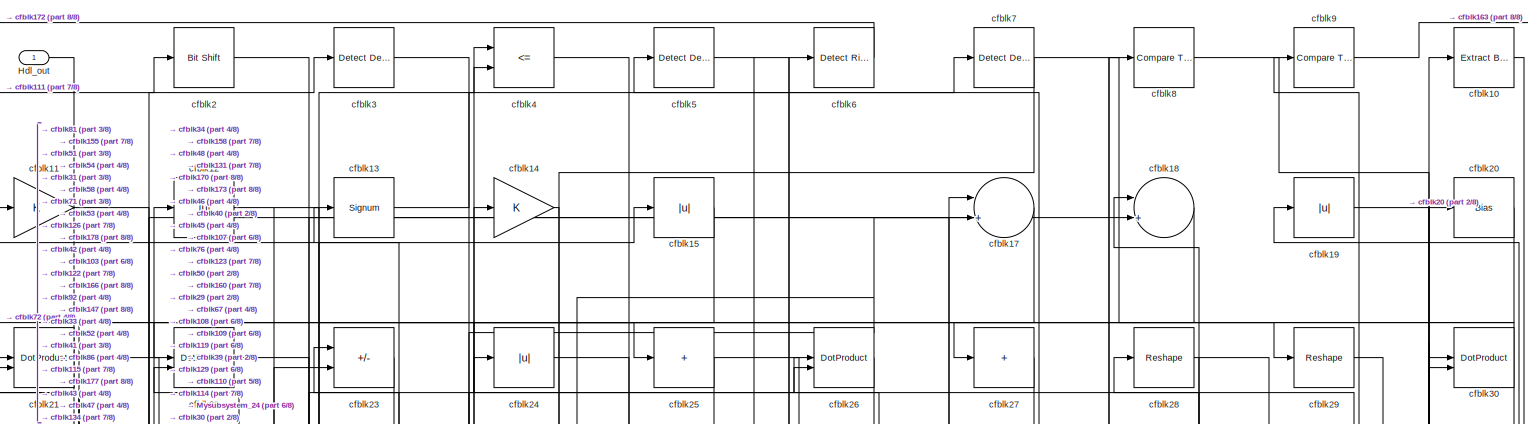
[diagram: root canvas - part 1/8, full width, top band]
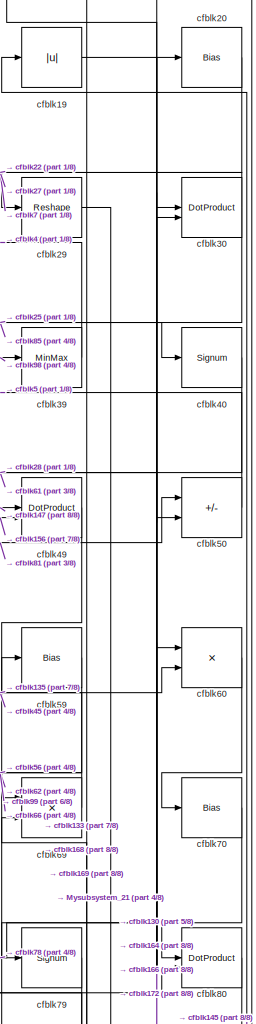
[diagram: root canvas - part 2/8, top right region]
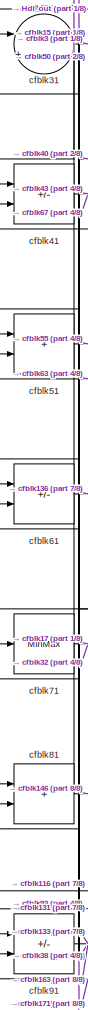
[diagram: root canvas - part 3/8, middle left region]
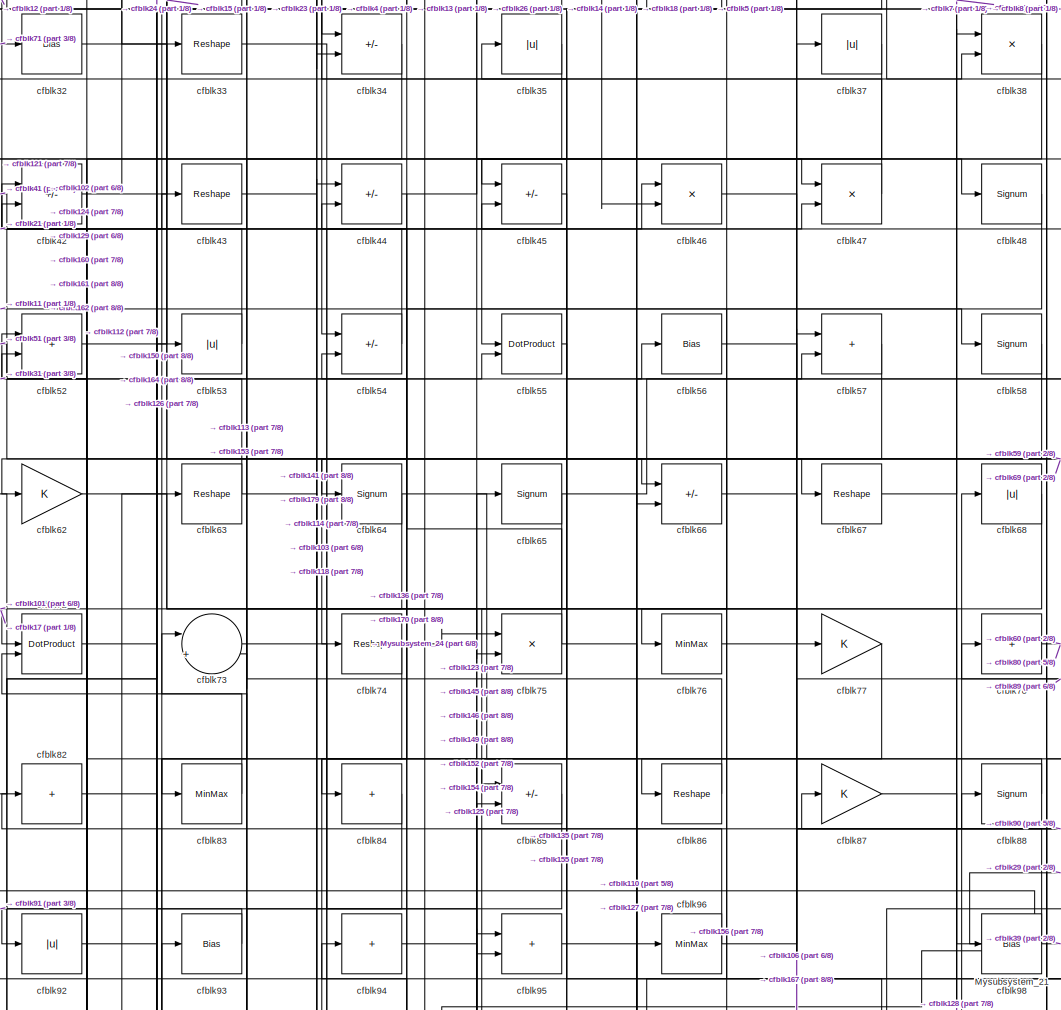
[diagram: root canvas - part 4/8, central region]
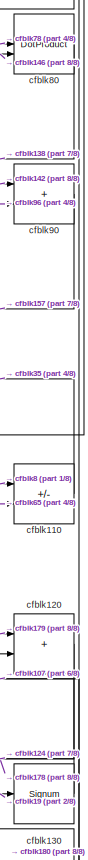
[diagram: root canvas - part 5/8, middle right region]
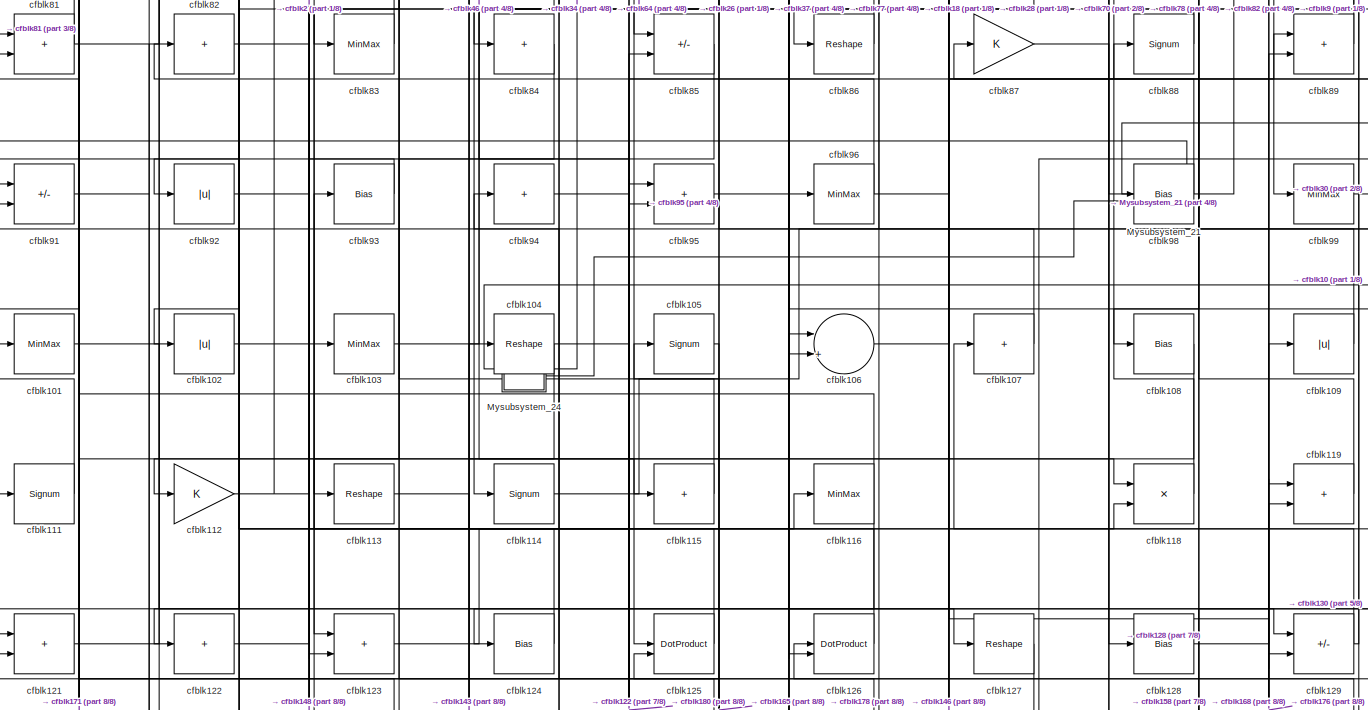
[diagram: root canvas - part 6/8, full width, middle band]
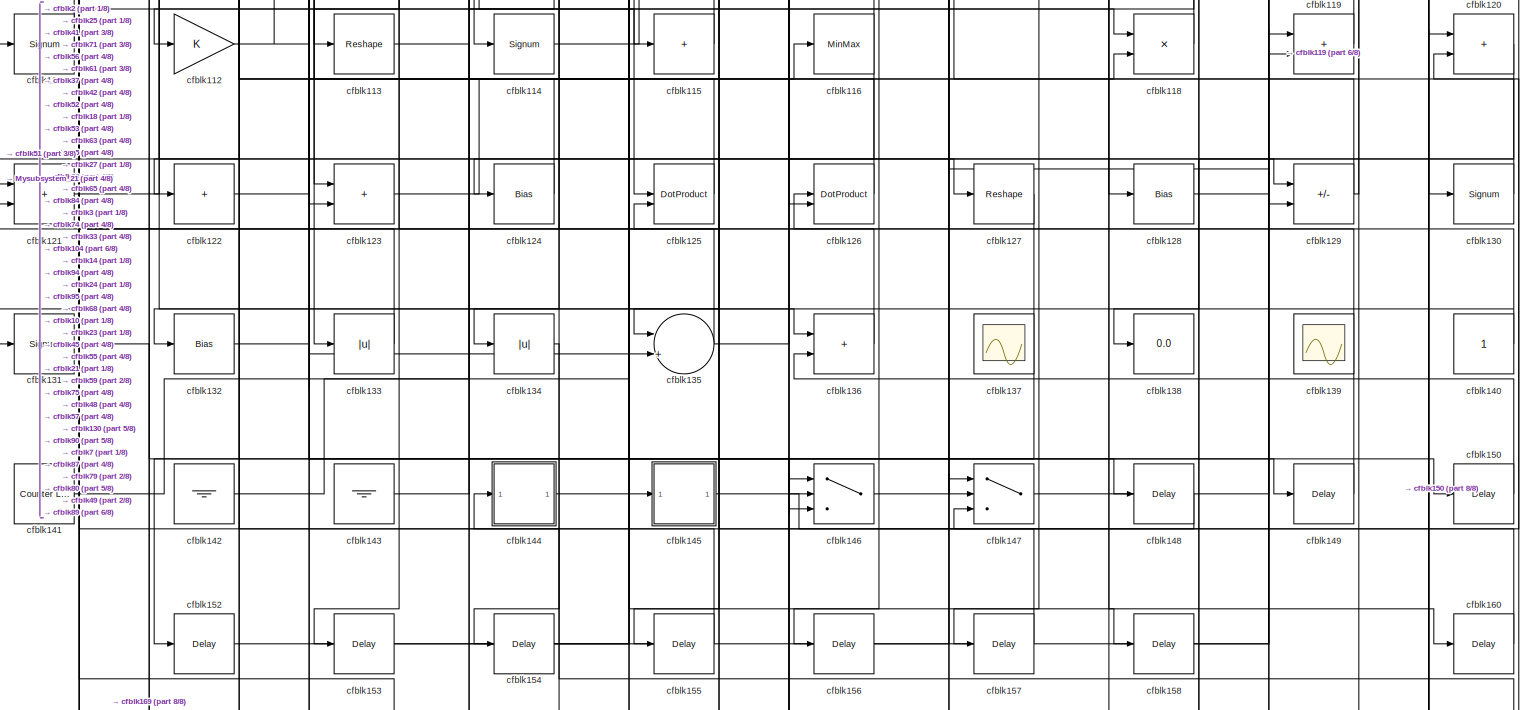
[diagram: root canvas - part 7/8, full width, bottom band]
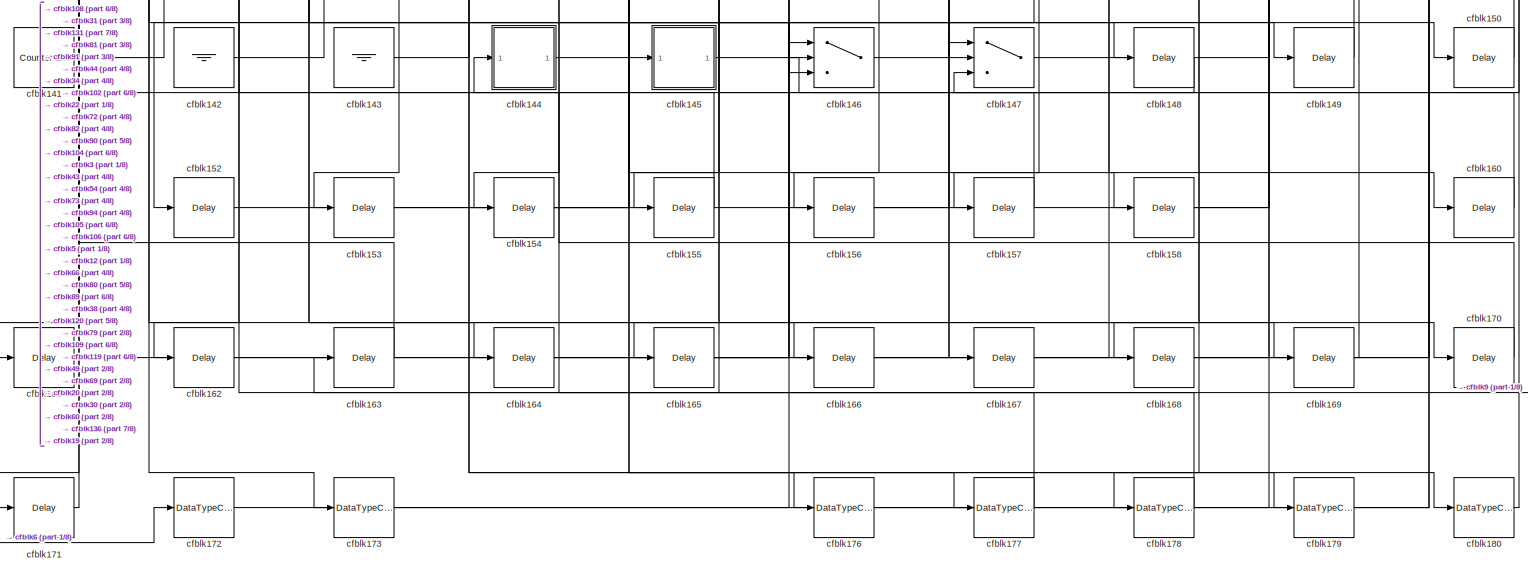
[diagram: root canvas - part 8/8, full width, bottom band]
MODEL slx_ea24ddf45c5c
KIND model
CONFIG AbsTol = auto
CONFIG EnableMultiTasking = off
CONFIG FixedStep = auto
CONFIG MaxStep = auto
CONFIG MinStep = auto
CONFIG RelTol = 1e-3
CONFIG SampleTimeConstraint = Unconstrained
CONFIG SolverName = VariableStepAuto
CONFIG StartTime = 0.0
CONFIG StopTime = 10.0
BLOCK [Outport] Hdl_out
  OutDataTypeStr = uint8
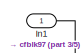
[diagram: Mysubsystem_21 - part 1/5, top right region]
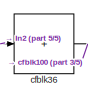
[diagram: Mysubsystem_21 - part 2/5, top center region]
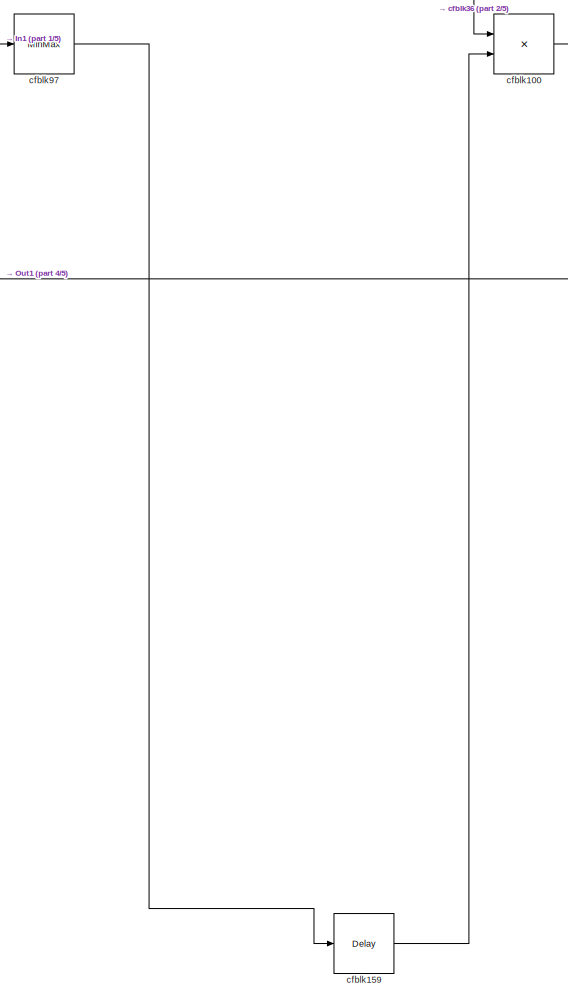
[diagram: Mysubsystem_21 - part 3/5, middle right region]
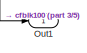
[diagram: Mysubsystem_21 - part 4/5, middle left region]
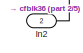
[diagram: Mysubsystem_21 - part 5/5, bottom center region]
BLOCK [SubSystem] Mysubsystem_21
  RTWFcnName = Mysubsystem_21
  RTWFcnNameOpts = User specified
  RTWFileNameOpts = Use function name
  RTWSystemCode = Reusable function
  TreatAsAtomicUnit = on
BLOCK [Inport] Mysubsystem_21/In1
BLOCK [Inport] Mysubsystem_21/In2
  Port = 2
BLOCK [Outport] Mysubsystem_21/Out1
BLOCK [Product] Mysubsystem_21/cfblk100
  Inputs = */
  RndMeth = Zero
  SaturateOnIntegerOverflow = on
BLOCK [Delay] Mysubsystem_21/cfblk159
  InputPortMap = u0
  SampleTime = 1
BLOCK [Sum] Mysubsystem_21/cfblk36
  IconShape = rectangular
  Inputs = +
BLOCK [MinMax] Mysubsystem_21/cfblk97
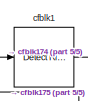
[diagram: Mysubsystem_24 - part 1/5, top left region]
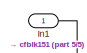
[diagram: Mysubsystem_24 - part 2/5, top right region]
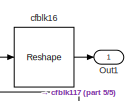
[diagram: Mysubsystem_24 - part 3/5, top center region]
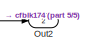
[diagram: Mysubsystem_24 - part 4/5, middle right region]
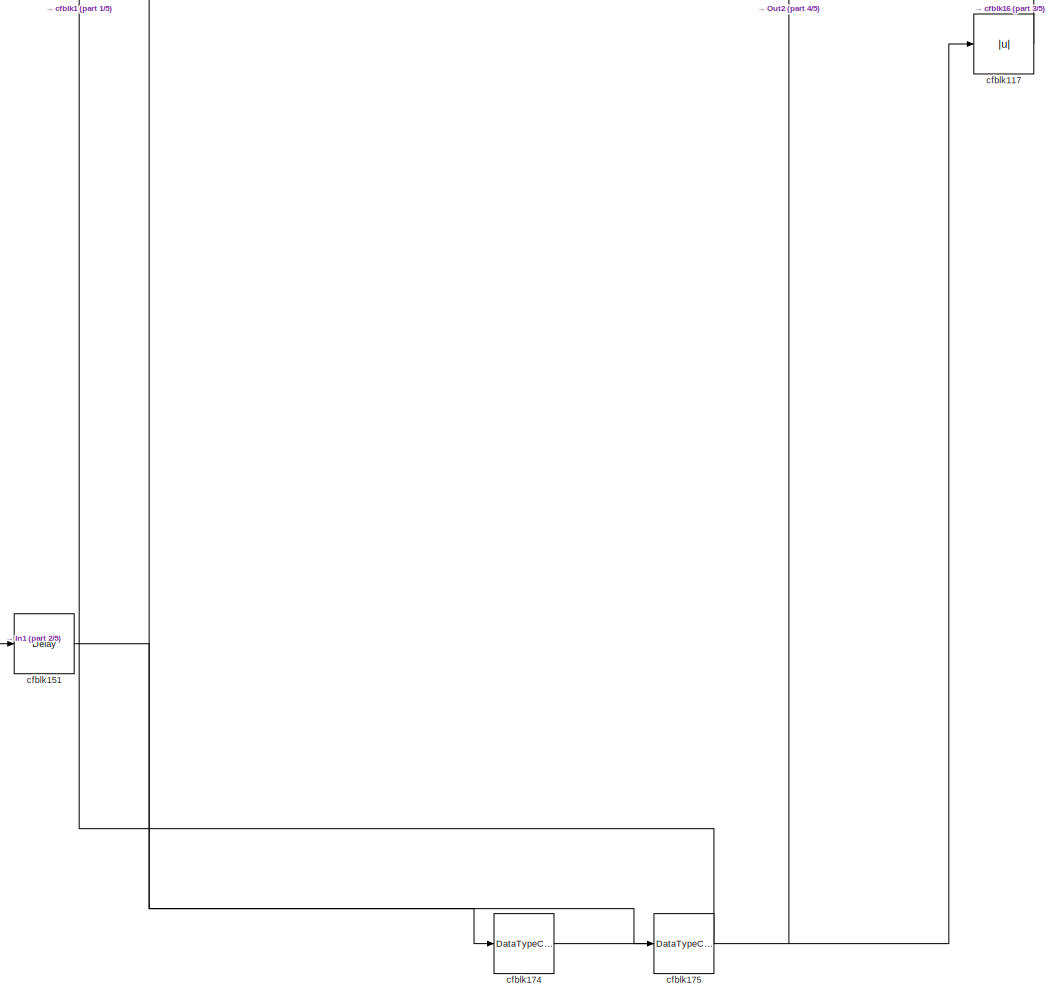
[diagram: Mysubsystem_24 - part 5/5, bottom center region]
BLOCK [SubSystem] Mysubsystem_24
  RTWFcnName = Mysubsystem_24
  RTWFcnNameOpts = User specified
  RTWFileNameOpts = Use function name
  RTWSystemCode = Reusable function
  TreatAsAtomicUnit = on
BLOCK [Inport] Mysubsystem_24/In1
BLOCK [Outport] Mysubsystem_24/Out1
BLOCK [Outport] Mysubsystem_24/Out2
  Port = 2
BLOCK [Reference] Mysubsystem_24/cfblk1  REF=hdlsllib/Logic and Bit
Operations/Detect Rise
Nonnegative
  SourceBlock = hdlsllib/Logic and Bit\nOperations/Detect Rise\nNonnegative
  SourceType = Detect Rise Nonnegative
BLOCK [Abs] Mysubsystem_24/cfblk117
  SaturateOnIntegerOverflow = off
BLOCK [Delay] Mysubsystem_24/cfblk151
  InputPortMap = u0
  SampleTime = 1
BLOCK [Reshape] Mysubsystem_24/cfblk16
BLOCK [DataTypeConversion] Mysubsystem_24/cfblk174
  RndMeth = Floor
  SaturateOnIntegerOverflow = off
BLOCK [DataTypeConversion] Mysubsystem_24/cfblk175
  OutDataTypeStr = uint8
  RndMeth = Floor
  SaturateOnIntegerOverflow = off
BLOCK [Reference] cfblk10  REF=simulink/Logic and Bit
Operations/Extract Bits
  LibrarySourceBlock = hdlsllib/Logic and Bit\nOperations/Extract Bits
  SourceBlock = simulink/Logic and Bit\nOperations/Extract Bits
  SourceType = Extract Bits
BLOCK [MinMax] cfblk101
  OutDataTypeStr = uint8
BLOCK [Abs] cfblk102
  OutDataTypeStr = uint8
  SaturateOnIntegerOverflow = off
BLOCK [MinMax] cfblk103
  OutDataTypeStr = uint8
BLOCK [Reshape] cfblk104
BLOCK [Signum] cfblk105
BLOCK [Sum] cfblk106
  Inputs = |++
  OutDataTypeStr = uint8
BLOCK [Sum] cfblk107
  IconShape = rectangular
  Inputs = +
  OutDataTypeStr = uint8
BLOCK [Bias] cfblk108
  Bias = 0.0
  SaturateOnIntegerOverflow = off
BLOCK [Abs] cfblk109
  OutDataTypeStr = uint8
  SaturateOnIntegerOverflow = off
BLOCK [Gain] cfblk11
  OutDataTypeStr = uint8
BLOCK [Sum] cfblk110
  IconShape = rectangular
  Inputs = +-
  OutDataTypeStr = uint8
BLOCK [Signum] cfblk111
BLOCK [Gain] cfblk112
  OutDataTypeStr = uint8
BLOCK [Reshape] cfblk113
BLOCK [Signum] cfblk114
BLOCK [Sum] cfblk115
  IconShape = rectangular
  Inputs = +
  OutDataTypeStr = uint8
BLOCK [MinMax] cfblk116
  OutDataTypeStr = uint8
BLOCK [Product] cfblk118
  Inputs = */
  OutDataTypeStr = uint8
  RndMeth = Zero
  SaturateOnIntegerOverflow = on
BLOCK [Sum] cfblk119
  IconShape = rectangular
  OutDataTypeStr = uint8
BLOCK [Abs] cfblk12
  OutDataTypeStr = uint8
  SaturateOnIntegerOverflow = off
BLOCK [Sum] cfblk120
  IconShape = rectangular
  OutDataTypeStr = uint8
BLOCK [Sum] cfblk121
  IconShape = rectangular
  OutDataTypeStr = uint8
BLOCK [Sum] cfblk122
  IconShape = rectangular
  Inputs = +
  OutDataTypeStr = uint8
BLOCK [Sum] cfblk123
  IconShape = rectangular
  OutDataTypeStr = uint8
BLOCK [Bias] cfblk124
  Bias = 0.0
  SaturateOnIntegerOverflow = off
BLOCK [DotProduct] cfblk125
  OutDataTypeStr = uint8
BLOCK [DotProduct] cfblk126
  OutDataTypeStr = uint8
BLOCK [Reshape] cfblk127
BLOCK [Bias] cfblk128
  Bias = 0.0
  SaturateOnIntegerOverflow = off
BLOCK [Sum] cfblk129
  IconShape = rectangular
  Inputs = +-
  OutDataTypeStr = uint8
BLOCK [Signum] cfblk13
BLOCK [Signum] cfblk130
BLOCK [Signum] cfblk131
BLOCK [Bias] cfblk132
  Bias = 0.0
  SaturateOnIntegerOverflow = off
BLOCK [Abs] cfblk133
  OutDataTypeStr = uint8
  SaturateOnIntegerOverflow = off
BLOCK [Abs] cfblk134
  OutDataTypeStr = uint8
  SaturateOnIntegerOverflow = off
BLOCK [Sum] cfblk135
  Inputs = |++
  OutDataTypeStr = uint8
BLOCK [Sum] cfblk136
  IconShape = rectangular
  OutDataTypeStr = uint8
BLOCK [Scope] cfblk137
  Floating = on
  NumInputPorts = 1
  ScopeSpecificationString = Simulink.scopes.TimeScopeBlockCfg('CurrentConfiguration', extmgr.ConfigurationSet(extmgr.Configuration('Core','General UI',true,'FigureColor',[0.156862745098039 0.156862745098039 0.156862745098039]),extmgr.Configuration('Core','Source UI',true),extmgr.Configuration('Sources','WiredSimulink',true,'DataLoggingVariableName','ScopeData1','DataLoggingSaveFormat','StructureWithTime','DataLoggingLimitDat...<+2713ch>
BLOCK [Display] cfblk138
  Decimation = 1
BLOCK [Scope] cfblk139
  Floating = on
  NumInputPorts = 1
  ScopeSpecificationString = Simulink.scopes.TimeScopeBlockCfg('CurrentConfiguration', extmgr.ConfigurationSet(extmgr.Configuration('Core','General UI',true,'FigureColor',[0.156862745098039 0.156862745098039 0.156862745098039]),extmgr.Configuration('Core','Source UI',true),extmgr.Configuration('Sources','WiredSimulink',true,'DataLoggingVariableName','ScopeData1','DataLoggingSaveFormat','StructureWithTime','DataLoggingLimitDat...<+2713ch>
BLOCK [Gain] cfblk14
  OutDataTypeStr = uint8
BLOCK [Constant] cfblk140
  OutDataTypeStr = uint8
  SampleTime = -1
BLOCK [Reference] cfblk141  REF=hdlsllib/Sources/Counter
Limited
  SourceBlock = hdlsllib/Sources/Counter\nLimited
  SourceType = Counter Limited
BLOCK [Ground] cfblk142
BLOCK [Ground] cfblk143
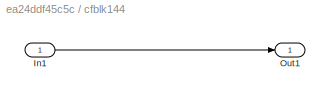
BLOCK [SubSystem] cfblk144
  LibrarySourceBlock = hdlsllib/Ports &\nSubsystems/Subsystem
BLOCK [Inport] cfblk144/In1
BLOCK [Outport] cfblk144/Out1
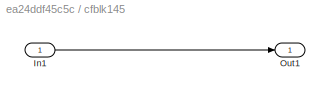
BLOCK [SubSystem] cfblk145
  LibrarySourceBlock = hdlsllib/Ports &\nSubsystems/Subsystem
BLOCK [Inport] cfblk145/In1
BLOCK [Outport] cfblk145/Out1
BLOCK [Switch] cfblk146
  InputSameDT = off
  OutDataTypeStr = uint8
  SaturateOnIntegerOverflow = off
BLOCK [Switch] cfblk147
  InputSameDT = off
  OutDataTypeStr = uint8
  SaturateOnIntegerOverflow = off
BLOCK [Delay] cfblk148
  InputPortMap = u0
  SampleTime = 1
BLOCK [Delay] cfblk149
  InputPortMap = u0
  SampleTime = 1
BLOCK [Abs] cfblk15
  OutDataTypeStr = uint8
  SaturateOnIntegerOverflow = off
BLOCK [Delay] cfblk150
  InputPortMap = u0
  SampleTime = 1
BLOCK [Delay] cfblk152
  InputPortMap = u0
  SampleTime = 1
BLOCK [Delay] cfblk153
  InputPortMap = u0
  SampleTime = 1
BLOCK [Delay] cfblk154
  InputPortMap = u0
  SampleTime = 1
BLOCK [Delay] cfblk155
  InputPortMap = u0
  SampleTime = 1
BLOCK [Delay] cfblk156
  InputPortMap = u0
  SampleTime = 1
BLOCK [Delay] cfblk157
  InputPortMap = u0
  SampleTime = 1
BLOCK [Delay] cfblk158
  InputPortMap = u0
  SampleTime = 1
BLOCK [Delay] cfblk160
  InputPortMap = u0
  SampleTime = 1
BLOCK [Delay] cfblk161
  InputPortMap = u0
  SampleTime = 1
BLOCK [Delay] cfblk162
  InputPortMap = u0
  SampleTime = 1
BLOCK [Delay] cfblk163
  InputPortMap = u0
  SampleTime = 1
BLOCK [Delay] cfblk164
  InputPortMap = u0
  SampleTime = 1
BLOCK [Delay] cfblk165
  InputPortMap = u0
  SampleTime = 1
BLOCK [Delay] cfblk166
  InputPortMap = u0
  SampleTime = 1
BLOCK [Delay] cfblk167
  InputPortMap = u0
  SampleTime = 1
BLOCK [Delay] cfblk168
  InputPortMap = u0
  SampleTime = 1
BLOCK [Delay] cfblk169
  InputPortMap = u0
  SampleTime = 1
BLOCK [Sum] cfblk17
  Inputs = |++
  OutDataTypeStr = uint8
BLOCK [Delay] cfblk170
  InputPortMap = u0
  SampleTime = 1
BLOCK [Delay] cfblk171
  InputPortMap = u0
  SampleTime = 1
BLOCK [DataTypeConversion] cfblk172
  OutDataTypeStr = uint8
  RndMeth = Floor
  SaturateOnIntegerOverflow = off
BLOCK [DataTypeConversion] cfblk173
  OutDataTypeStr = uint8
  RndMeth = Floor
  SaturateOnIntegerOverflow = off
BLOCK [DataTypeConversion] cfblk176
  OutDataTypeStr = uint8
  RndMeth = Floor
  SaturateOnIntegerOverflow = off
BLOCK [DataTypeConversion] cfblk177
  OutDataTypeStr = uint8
  RndMeth = Floor
  SaturateOnIntegerOverflow = off
BLOCK [DataTypeConversion] cfblk178
  OutDataTypeStr = uint8
  RndMeth = Floor
  SaturateOnIntegerOverflow = off
BLOCK [DataTypeConversion] cfblk179
  OutDataTypeStr = uint8
  RndMeth = Floor
  SaturateOnIntegerOverflow = off
BLOCK [Sum] cfblk18
  Inputs = |++
  OutDataTypeStr = uint8
BLOCK [DataTypeConversion] cfblk180
  OutDataTypeStr = uint8
  RndMeth = Floor
  SaturateOnIntegerOverflow = off
BLOCK [Abs] cfblk19
  OutDataTypeStr = uint8
  SaturateOnIntegerOverflow = off
BLOCK [Reference] cfblk2  REF=hdlsllib/Logic and Bit
Operations/Bit Shift
  SourceBlock = hdlsllib/Logic and Bit\nOperations/Bit Shift
  SourceType = Bit Shift
BLOCK [Bias] cfblk20
  Bias = 0.0
  SaturateOnIntegerOverflow = off
BLOCK [DotProduct] cfblk21
  OutDataTypeStr = uint8
BLOCK [DotProduct] cfblk22
  OutDataTypeStr = uint8
BLOCK [Sum] cfblk23
  IconShape = rectangular
  Inputs = +-
  OutDataTypeStr = uint8
BLOCK [Abs] cfblk24
  OutDataTypeStr = uint8
  SaturateOnIntegerOverflow = off
BLOCK [Sum] cfblk25
  IconShape = rectangular
  Inputs = +
  OutDataTypeStr = uint8
BLOCK [DotProduct] cfblk26
  OutDataTypeStr = uint8
BLOCK [Sum] cfblk27
  IconShape = rectangular
  Inputs = +
  OutDataTypeStr = uint8
BLOCK [Reshape] cfblk28
BLOCK [Reshape] cfblk29
BLOCK [Reference] cfblk3  REF=simulink/Logic and Bit
Operations/Detect
Decrease
  LibrarySourceBlock = hdlsllib/Logic and Bit\nOperations/Detect\nDecrease
  SourceBlock = simulink/Logic and Bit\nOperations/Detect\nDecrease
  SourceType = Detect Decrease
BLOCK [DotProduct] cfblk30
  OutDataTypeStr = uint8
BLOCK [Sum] cfblk31
  Inputs = |++
  OutDataTypeStr = uint8
BLOCK [Bias] cfblk32
  Bias = 0.0
  SaturateOnIntegerOverflow = off
BLOCK [Reshape] cfblk33
BLOCK [Sum] cfblk34
  IconShape = rectangular
  Inputs = +-
  OutDataTypeStr = uint8
BLOCK [Abs] cfblk35
  OutDataTypeStr = uint8
  SaturateOnIntegerOverflow = off
BLOCK [Abs] cfblk37
  OutDataTypeStr = uint8
  SaturateOnIntegerOverflow = off
BLOCK [Product] cfblk38
  Inputs = */
  OutDataTypeStr = uint8
  RndMeth = Zero
  SaturateOnIntegerOverflow = on
BLOCK [MinMax] cfblk39
  OutDataTypeStr = uint8
BLOCK [RelationalOperator] cfblk4
  InputSameDT = off
  Operator = <=
  OutDataTypeStr = boolean
BLOCK [Signum] cfblk40
BLOCK [Sum] cfblk41
  IconShape = rectangular
  Inputs = +-
  OutDataTypeStr = uint8
BLOCK [Sum] cfblk42
  IconShape = rectangular
  Inputs = +-
  OutDataTypeStr = uint8
BLOCK [Reshape] cfblk43
BLOCK [Sum] cfblk44
  IconShape = rectangular
  Inputs = +-
  OutDataTypeStr = uint8
BLOCK [Sum] cfblk45
  IconShape = rectangular
  Inputs = +-
  OutDataTypeStr = uint8
BLOCK [Product] cfblk46
  Inputs = */
  OutDataTypeStr = uint8
  RndMeth = Zero
  SaturateOnIntegerOverflow = on
BLOCK [Product] cfblk47
  Inputs = */
  OutDataTypeStr = uint8
  RndMeth = Zero
  SaturateOnIntegerOverflow = on
BLOCK [Signum] cfblk48
BLOCK [DotProduct] cfblk49
  OutDataTypeStr = uint8
BLOCK [Reference] cfblk5  REF=simulink/Logic and Bit
Operations/Detect
Decrease
  LibrarySourceBlock = hdlsllib/Logic and Bit\nOperations/Detect\nDecrease
  SourceBlock = simulink/Logic and Bit\nOperations/Detect\nDecrease
  SourceType = Detect Decrease
BLOCK [Sum] cfblk50
  IconShape = rectangular
  Inputs = +-
  OutDataTypeStr = uint8
BLOCK [Sum] cfblk51
  IconShape = rectangular
  OutDataTypeStr = uint8
BLOCK [Sum] cfblk52
  IconShape = rectangular
  OutDataTypeStr = uint8
BLOCK [Abs] cfblk53
  OutDataTypeStr = uint8
  SaturateOnIntegerOverflow = off
BLOCK [Sum] cfblk54
  IconShape = rectangular
  Inputs = +-
  OutDataTypeStr = uint8
BLOCK [DotProduct] cfblk55
  OutDataTypeStr = uint8
BLOCK [Bias] cfblk56
  Bias = 0.0
  SaturateOnIntegerOverflow = off
BLOCK [Sum] cfblk57
  IconShape = rectangular
  OutDataTypeStr = uint8
BLOCK [Signum] cfblk58
BLOCK [Bias] cfblk59
  Bias = 0.0
  SaturateOnIntegerOverflow = off
BLOCK [Reference] cfblk6  REF=hdlsllib/Logic and Bit
Operations/Detect Rise
Positive
  SourceBlock = hdlsllib/Logic and Bit\nOperations/Detect Rise\nPositive
  SourceType = Detect Rise Positive
BLOCK [Product] cfblk60
  Inputs = */
  OutDataTypeStr = uint8
  RndMeth = Zero
  SaturateOnIntegerOverflow = on
BLOCK [Sum] cfblk61
  IconShape = rectangular
  Inputs = +-
  OutDataTypeStr = uint8
BLOCK [Gain] cfblk62
  OutDataTypeStr = uint8
BLOCK [Reshape] cfblk63
BLOCK [Signum] cfblk64
BLOCK [Signum] cfblk65
BLOCK [Sum] cfblk66
  IconShape = rectangular
  Inputs = +-
  OutDataTypeStr = uint8
BLOCK [Reshape] cfblk67
BLOCK [Abs] cfblk68
  OutDataTypeStr = uint8
  SaturateOnIntegerOverflow = off
BLOCK [Product] cfblk69
  Inputs = */
  OutDataTypeStr = uint8
  RndMeth = Zero
  SaturateOnIntegerOverflow = on
BLOCK [Reference] cfblk7  REF=simulink/Logic and Bit
Operations/Detect
Decrease
  LibrarySourceBlock = hdlsllib/Logic and Bit\nOperations/Detect\nDecrease
  SourceBlock = simulink/Logic and Bit\nOperations/Detect\nDecrease
  SourceType = Detect Decrease
BLOCK [Bias] cfblk70
  Bias = 0.0
  SaturateOnIntegerOverflow = off
BLOCK [MinMax] cfblk71
  OutDataTypeStr = uint8
BLOCK [DotProduct] cfblk72
  OutDataTypeStr = uint8
BLOCK [Sum] cfblk73
  Inputs = |++
  OutDataTypeStr = uint8
BLOCK [Reshape] cfblk74
BLOCK [Product] cfblk75
  Inputs = */
  OutDataTypeStr = uint8
  RndMeth = Zero
  SaturateOnIntegerOverflow = on
BLOCK [MinMax] cfblk76
  OutDataTypeStr = uint8
BLOCK [Gain] cfblk77
  OutDataTypeStr = uint8
BLOCK [Sum] cfblk78
  IconShape = rectangular
  Inputs = +
  OutDataTypeStr = uint8
BLOCK [Signum] cfblk79
BLOCK [Reference] cfblk8  REF=hdlsllib/Logic and Bit
Operations/Compare
To Constant
  SourceBlock = hdlsllib/Logic and Bit\nOperations/Compare\nTo Constant
  SourceType = Compare To Constant
BLOCK [DotProduct] cfblk80
  OutDataTypeStr = uint8
BLOCK [Sum] cfblk81
  IconShape = rectangular
  OutDataTypeStr = uint8
BLOCK [Sum] cfblk82
  IconShape = rectangular
  Inputs = +
  OutDataTypeStr = uint8
BLOCK [MinMax] cfblk83
  OutDataTypeStr = uint8
BLOCK [Sum] cfblk84
  IconShape = rectangular
  Inputs = +
  OutDataTypeStr = uint8
BLOCK [Sum] cfblk85
  IconShape = rectangular
  Inputs = +-
  OutDataTypeStr = uint8
BLOCK [Reshape] cfblk86
BLOCK [Gain] cfblk87
  OutDataTypeStr = uint8
BLOCK [Signum] cfblk88
BLOCK [Sum] cfblk89
  IconShape = rectangular
  OutDataTypeStr = uint8
BLOCK [Reference] cfblk9  REF=hdlsllib/Logic and Bit
Operations/Compare
To Constant
  SourceBlock = hdlsllib/Logic and Bit\nOperations/Compare\nTo Constant
  SourceType = Compare To Constant
BLOCK [Sum] cfblk90
  IconShape = rectangular
  OutDataTypeStr = uint8
BLOCK [Sum] cfblk91
  IconShape = rectangular
  Inputs = +-
  OutDataTypeStr = uint8
BLOCK [Abs] cfblk92
  OutDataTypeStr = uint8
  SaturateOnIntegerOverflow = off
BLOCK [Bias] cfblk93
  Bias = 0.0
  SaturateOnIntegerOverflow = off
BLOCK [Sum] cfblk94
  IconShape = rectangular
  Inputs = +
  OutDataTypeStr = uint8
BLOCK [Sum] cfblk95
  IconShape = rectangular
  OutDataTypeStr = uint8
BLOCK [MinMax] cfblk96
  OutDataTypeStr = uint8
BLOCK [Bias] cfblk98
  Bias = 0.0
  SaturateOnIntegerOverflow = off
BLOCK [MinMax] cfblk99
  OutDataTypeStr = uint8
LINE Mysubsystem_21/In1:1 -> Mysubsystem_21/cfblk97:1
LINE Mysubsystem_21/In2:1 -> Mysubsystem_21/cfblk36:1
LINE Mysubsystem_21/cfblk100:1 -> Mysubsystem_21/Out1:1
LINE Mysubsystem_21/cfblk159:1 -> Mysubsystem_21/cfblk100:2
LINE Mysubsystem_21/cfblk36:1 -> Mysubsystem_21/cfblk100:1
LINE Mysubsystem_21/cfblk97:1 -> Mysubsystem_21/cfblk159:1
LINE Mysubsystem_21:1 -> cfblk121:1
LINE Mysubsystem_24/In1:1 -> Mysubsystem_24/cfblk151:1
LINE Mysubsystem_24/cfblk117:1 -> Mysubsystem_24/cfblk16:1
LINE Mysubsystem_24/cfblk151:1 -> Mysubsystem_24/cfblk175:1
LINE Mysubsystem_24/cfblk16:1 -> Mysubsystem_24/Out1:1
NET Mysubsystem_24/cfblk174:1 -> Mysubsystem_24/Out2:1, Mysubsystem_24/cfblk117:1
LINE Mysubsystem_24/cfblk175:1 -> Mysubsystem_24/cfblk1:1
LINE Mysubsystem_24/cfblk1:1 -> Mysubsystem_24/cfblk174:1
NET Mysubsystem_24:1 -> cfblk129:2, cfblk34:2
LINE Mysubsystem_24:2 -> Mysubsystem_21:2
LINE cfblk101:1 -> cfblk129:1
LINE cfblk102:1 -> cfblk148:1
LINE cfblk103:1 -> cfblk46:1
NET cfblk104:1 -> cfblk122:1, cfblk180:1
LINE cfblk105:1 -> cfblk165:1
LINE cfblk106:1 -> cfblk37:1
NET cfblk107:1 -> cfblk26:1, cfblk81:1
LINE cfblk108:1 -> cfblk171:1
LINE cfblk109:1 -> cfblk28:1
LINE cfblk10:1 -> Mysubsystem_24:1
LINE cfblk110:1 -> cfblk35:1
LINE cfblk111:1 -> cfblk2:1
NET cfblk112:1 -> cfblk53:1, cfblk63:1
LINE cfblk113:1 -> cfblk118:2
LINE cfblk114:1 -> cfblk10:1
LINE cfblk115:1 -> cfblk23:1
NET cfblk116:1 -> cfblk121:2, cfblk51:2
LINE cfblk118:1 -> cfblk68:1
LINE cfblk119:1 -> cfblk18:1
LINE cfblk11:1 -> cfblk58:1
LINE cfblk120:1 -> cfblk178:1
LINE cfblk121:1 -> cfblk56:1
LINE cfblk122:1 -> cfblk18:2
LINE cfblk123:1 -> cfblk65:1
LINE cfblk124:1 -> cfblk52:2
LINE cfblk125:1 -> cfblk42:1
LINE cfblk126:1 -> cfblk93:1
LINE cfblk127:1 -> cfblk152:1
LINE cfblk128:1 -> cfblk119:1
NET cfblk129:1 -> cfblk82:1, cfblk9:1
NET cfblk12:1 -> cfblk147:2, cfblk25:1, cfblk33:1
NET cfblk130:1 -> cfblk107:1, cfblk124:1
NET cfblk131:1 -> cfblk169:1, cfblk41:1
NET cfblk132:1 -> cfblk116:1, cfblk135:2
LINE cfblk133:1 -> cfblk61:2
LINE cfblk134:1 -> cfblk154:1
NET cfblk135:1 -> cfblk59:1, cfblk71:1
NET cfblk136:1 -> cfblk111:1, cfblk94:1
LINE cfblk13:1 -> cfblk7:1
NET cfblk140:1 -> cfblk126:1, cfblk132:1
LINE cfblk141:1 -> cfblk44:1
LINE cfblk142:1 -> cfblk90:1
LINE cfblk143:1 -> cfblk104:1
LINE cfblk144/In1:1 -> cfblk144/Out1:1
LINE cfblk144:1 -> cfblk176:1
LINE cfblk145/In1:1 -> cfblk145/Out1:1
LINE cfblk145:1 -> cfblk19:1
NET cfblk146:1 -> cfblk80:2, cfblk89:1
LINE cfblk147:1 -> cfblk49:1
LINE cfblk148:1 -> cfblk147:3
LINE cfblk149:1 -> cfblk73:1
LINE cfblk14:1 -> cfblk134:1
LINE cfblk150:1 -> cfblk136:2
LINE cfblk152:1 -> cfblk95:1
LINE cfblk153:1 -> cfblk57:1
LINE cfblk154:1 -> cfblk85:2
LINE cfblk155:1 -> cfblk21:2
LINE cfblk156:1 -> cfblk49:2
LINE cfblk157:1 -> cfblk125:2
LINE cfblk158:1 -> cfblk89:2
LINE cfblk15:1 -> cfblk51:1
LINE cfblk160:1 -> cfblk42:2
LINE cfblk161:1 -> cfblk147:1
LINE cfblk162:1 -> cfblk146:1
LINE cfblk163:1 -> cfblk91:2
LINE cfblk164:1 -> cfblk30:1
LINE cfblk165:1 -> cfblk106:1
LINE cfblk166:1 -> cfblk60:1
LINE cfblk167:1 -> cfblk38:1
LINE cfblk168:1 -> cfblk119:2
LINE cfblk169:1 -> cfblk69:2
LINE cfblk170:1 -> cfblk54:2
LINE cfblk171:1 -> cfblk31:1
LINE cfblk172:1 -> cfblk20:1
LINE cfblk173:1 -> cfblk6:1
LINE cfblk176:1 -> cfblk109:1
LINE cfblk177:1 -> cfblk144:1
NET cfblk178:1 -> cfblk105:1, cfblk22:2
LINE cfblk179:1 -> cfblk120:1
LINE cfblk17:1 -> cfblk72:1
LINE cfblk180:1 -> cfblk120:2
LINE cfblk18:1 -> cfblk54:1
LINE cfblk19:1 -> cfblk130:1
LINE cfblk20:1 -> cfblk22:1
LINE cfblk21:1 -> cfblk126:2
LINE cfblk22:1 -> cfblk166:1
LINE cfblk23:1 -> cfblk41:2
LINE cfblk24:1 -> cfblk158:1
NET cfblk25:1 -> cfblk131:1, cfblk40:1
LINE cfblk26:1 -> cfblk45:1
LINE cfblk27:1 -> cfblk123:1
NET cfblk28:1 -> cfblk108:1, cfblk50:2
LINE cfblk29:1 -> Mysubsystem_21:1
LINE cfblk2:1 -> cfblk103:1
NET cfblk30:1 -> cfblk27:1, cfblk85:1
NET cfblk31:1 -> cfblk3:1, cfblk81:2
LINE cfblk32:1 -> cfblk66:1
LINE cfblk33:1 -> cfblk118:1
NET cfblk34:1 -> cfblk161:1, cfblk162:1
LINE cfblk35:1 -> cfblk55:1
LINE cfblk37:1 -> cfblk112:1
NET cfblk38:1 -> cfblk73:2, cfblk83:1
LINE cfblk39:1 -> cfblk4:1
NET cfblk3:1 -> cfblk115:1, cfblk177:1
LINE cfblk40:1 -> cfblk61:1
NET cfblk41:1 -> cfblk43:1, cfblk67:1
NET cfblk42:1 -> cfblk23:2, cfblk4:2
NET cfblk43:1 -> cfblk179:1, cfblk26:2
NET cfblk44:1 -> cfblk47:1, cfblk84:1
LINE cfblk45:1 -> cfblk135:1
LINE cfblk46:1 -> cfblk77:1
LINE cfblk47:1 -> cfblk14:1
NET cfblk48:1 -> cfblk156:1, cfblk64:1
LINE cfblk49:1 -> cfblk79:1
LINE cfblk4:1 -> cfblk48:1
LINE cfblk50:1 -> cfblk5:1
LINE cfblk51:1 -> cfblk55:2
LINE cfblk52:1 -> cfblk15:1
LINE cfblk53:1 -> cfblk12:1
LINE cfblk54:1 -> cfblk21:1
LINE cfblk55:1 -> cfblk155:1
LINE cfblk56:1 -> cfblk69:1
NET cfblk57:1 -> cfblk74:1, cfblk76:1
LINE cfblk58:1 -> cfblk92:1
LINE cfblk59:1 -> cfblk66:2
NET cfblk5:1 -> cfblk170:1, cfblk46:2
LINE cfblk60:1 -> cfblk70:1
LINE cfblk61:1 -> cfblk136:1
LINE cfblk62:1 -> cfblk98:1
NET cfblk63:1 -> cfblk31:2, cfblk75:2
NET cfblk64:1 -> cfblk101:1, cfblk96:1
NET cfblk65:1 -> cfblk110:2, cfblk113:1, cfblk57:2
LINE cfblk66:1 -> cfblk167:1
LINE cfblk67:1 -> cfblk8:1
LINE cfblk68:1 -> cfblk125:1
NET cfblk69:1 -> cfblk45:2, cfblk62:1
LINE cfblk6:1 -> cfblk172:1
LINE cfblk70:1 -> cfblk99:1
NET cfblk71:1 -> cfblk17:2, cfblk32:1
LINE cfblk72:1 -> cfblk150:1
NET cfblk73:1 -> cfblk145:1, cfblk95:2
NET cfblk74:1 -> cfblk114:1, cfblk75:1
NET cfblk75:1 -> cfblk127:1, cfblk44:2
LINE cfblk76:1 -> cfblk17:1
LINE cfblk77:1 -> cfblk102:1
NET cfblk78:1 -> cfblk60:2, cfblk80:1
NET cfblk79:1 -> cfblk133:1, cfblk168:1
NET cfblk7:1 -> cfblk160:1, cfblk29:1, cfblk34:1
LINE cfblk80:1 -> cfblk138:1
NET cfblk81:1 -> Hdl_out:1, cfblk146:2, cfblk50:1
LINE cfblk82:1 -> cfblk164:1
LINE cfblk83:1 -> cfblk72:2
LINE cfblk84:1 -> cfblk153:1
LINE cfblk85:1 -> cfblk123:2
NET cfblk86:1 -> cfblk11:1, cfblk13:1
LINE cfblk87:1 -> cfblk128:1
LINE cfblk88:1 -> cfblk86:1
LINE cfblk89:1 -> cfblk78:1
LINE cfblk8:1 -> cfblk110:1
LINE cfblk90:1 -> cfblk157:1
NET cfblk91:1 -> cfblk173:1, cfblk38:2, cfblk47:2
LINE cfblk92:1 -> cfblk24:1
LINE cfblk93:1 -> cfblk91:1
NET cfblk94:1 -> cfblk146:3, cfblk149:1
LINE cfblk95:1 -> cfblk106:2
NET cfblk96:1 -> cfblk52:1, cfblk88:1, cfblk90:2
NET cfblk98:1 -> cfblk39:1, cfblk87:1
LINE cfblk99:1 -> cfblk30:2
LINE cfblk9:1 -> cfblk163:1
note: NET lines group one-source signal fan-out (src -> all destinations, sorted); 1:1 wires keep LINE
